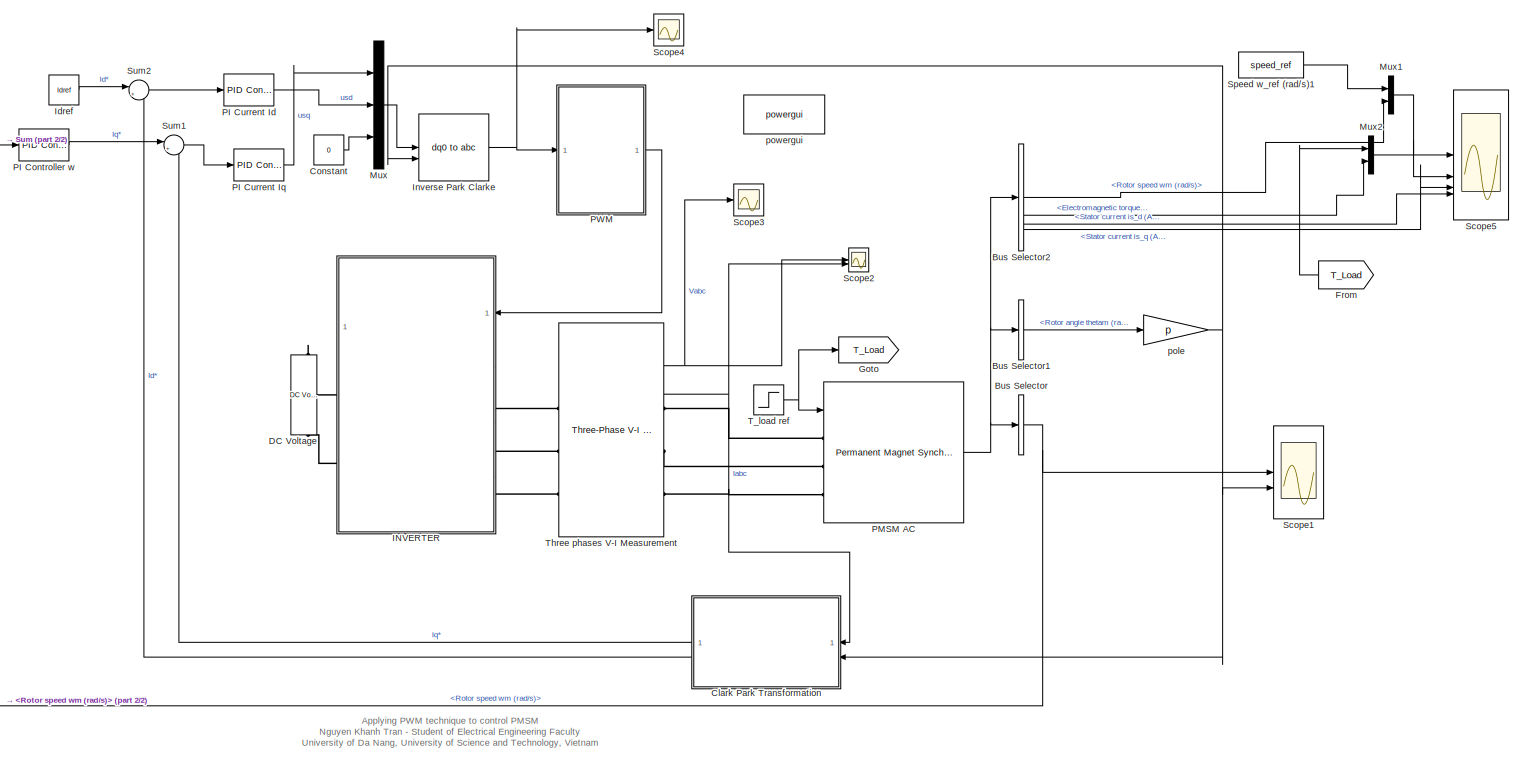
[diagram: root canvas - part 1/2, most of the canvas]
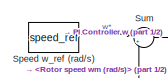
[diagram: root canvas - part 2/2, top left region]
MODEL slx_ce0d3dbd15e3
KIND model
CONFIG AbsTol = auto
CONFIG EnableMultiTasking = off
CONFIG FixedStep = auto
CONFIG MaxStep = 1e-4
CONFIG MinStep = auto
CONFIG RelTol = 1e-3
CONFIG SampleTimeConstraint = Unconstrained
CONFIG SolverName = VariableStepAuto
CONFIG StartTime = 0.0
CONFIG StopTime = 1
BLOCK [BusSelector] Bus Selector
  OutputSignals = Rotor speed wm (rad/s)
BLOCK [BusSelector] Bus Selector1
  OutputSignals = Rotor angle thetam (rad)
BLOCK [BusSelector] Bus Selector2
  OutputSignals = Rotor speed wm (rad/s),Electromagnetic torque Te (N*m),Stator current is_d (A),Stator current is_q (A)
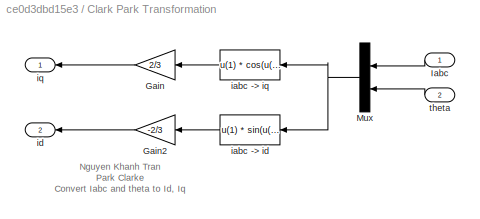
BLOCK [SubSystem] Clark Park Transformation
  NameLocation = top
BLOCK [Gain] Clark Park Transformation/Gain
  Gain = 2/3
  NameLocation = top
BLOCK [Gain] Clark Park Transformation/Gain2
  Gain = -2/3
  NameLocation = top
BLOCK [Inport] Clark Park Transformation/Iabc
  NameLocation = top
BLOCK [Mux] Clark Park Transformation/Mux
  DisplayOption = bar
  Inputs = 2
  NameLocation = top
BLOCK [Fcn] Clark Park Transformation/iabc -> id
  Expr = u(1) * sin(u(4)) + u(2) *sin(u(4) - 2*pi/3) + u(3)*sin(u(4)+2*pi/3)
BLOCK [Fcn] Clark Park Transformation/iabc -> iq
  Expr = u(1) * cos(u(4)) + u(2) *cos(u(4) - 2*pi/3) + u(3)*cos(u(4)+2*pi/3)
BLOCK [Outport] Clark Park Transformation/id
  NameLocation = top
  Port = 2
BLOCK [Outport] Clark Park Transformation/iq
  NameLocation = top
BLOCK [Inport] Clark Park Transformation/theta
  NameLocation = top
  Port = 2
BLOCK [Constant] Constant
  Value = 0
BLOCK [Reference] DC Voltage  REF=spsDCVoltageSourceLib/DC Voltage Source
  SourceBlock = spsDCVoltageSourceLib/DC Voltage Source
  SourceType = DC Voltage Source
BLOCK [From] From
  GotoTag = T_Load
  NameLocation = top
BLOCK [Goto] Goto
  GotoTag = T_Load
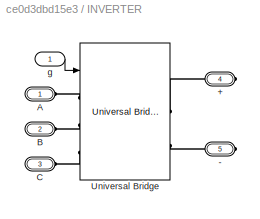
BLOCK [SubSystem] INVERTER
  NameLocation = top
BLOCK [PMIOPort] INVERTER/+
  Port = 4
  Side = Right
BLOCK [PMIOPort] INVERTER/-
  Port = 5
  Side = Right
BLOCK [PMIOPort] INVERTER/A
  Side = Left
BLOCK [PMIOPort] INVERTER/B
  Port = 2
  Side = Left
BLOCK [PMIOPort] INVERTER/C
  Port = 3
  Side = Left
BLOCK [Reference] INVERTER/Universal Bridge  REF=spsUniversalBridgeLib/Universal Bridge
  SourceBlock = spsUniversalBridgeLib/Universal Bridge
  SourceType = Universal Bridge
BLOCK [Inport] INVERTER/g
BLOCK [Constant] Idref
  Value = Idref
BLOCK [Reference] Inverse Park Clarke  REF=spsdq0toabcLib/dq0 to abc
  SourceBlock = spsdq0toabcLib/dq0 to abc
  SourceType = dq0 to abc Transformation
BLOCK [Mux] Mux
  DisplayOption = bar
  Inputs = 3
BLOCK [Mux] Mux1
  DisplayOption = bar
  Inputs = 2
BLOCK [Mux] Mux2
  DisplayOption = bar
  Inputs = 2
BLOCK [Reference] PI Controller w  REF=slpidlib/PID Controller
  SourceBlock = slpidlib/PID Controller
  SourceType = PID 1dof
BLOCK [Reference] PI Current Id  REF=slpidlib/PID Controller
  SourceBlock = slpidlib/PID Controller
  SourceType = PID 1dof
BLOCK [Reference] PI Current Iq  REF=slpidlib/PID Controller
  SourceBlock = slpidlib/PID Controller
  SourceType = PID 1dof
BLOCK [Reference] PMSM AC    REF=spsPermanentMagnetSynchronousMachineLib/Permanent Magnet
Synchronous Machine
  SourceBlock = spsPermanentMagnetSynchronousMachineLib/Permanent Magnet\nSynchronous Machine
  SourceType = Permanent Magnet Synchronous Machine
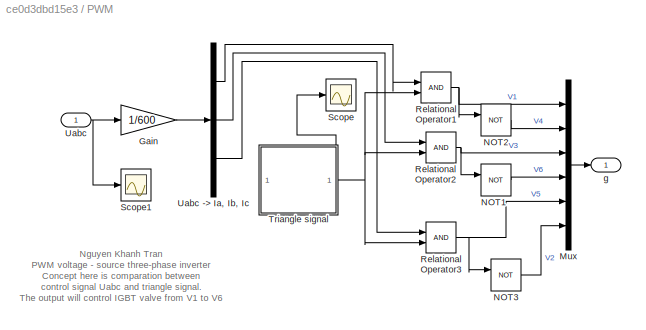
BLOCK [SubSystem] PWM 
BLOCK [Gain] PWM /Gain
  Gain = 1/600
BLOCK [Mux] PWM /Mux
  DisplayOption = bar
  Inputs = 6
BLOCK [Logic] PWM /NOT1
  AllPortsSameDT = off
  IconShape = distinctive
  Operator = NOT
  OutDataTypeStr = boolean
BLOCK [Logic] PWM /NOT2
  AllPortsSameDT = off
  IconShape = distinctive
  Operator = NOT
  OutDataTypeStr = boolean
BLOCK [Logic] PWM /NOT3
  AllPortsSameDT = off
  IconShape = distinctive
  Operator = NOT
  OutDataTypeStr = boolean
BLOCK [RelationalOperator] PWM /Relational Operator1
  InputSameDT = off
  OutDataTypeStr = boolean
  RndMeth = Simplest
BLOCK [RelationalOperator] PWM /Relational Operator2
  InputSameDT = off
  OutDataTypeStr = boolean
  RndMeth = Simplest
BLOCK [RelationalOperator] PWM /Relational Operator3
  InputSameDT = off
  OutDataTypeStr = boolean
  RndMeth = Simplest
BLOCK [Scope] PWM /Scope
  Floating = off
  NumInputPorts = 1
  ScopeSpecificationString = Simulink.scopes.TimeScopeBlockCfg('CurrentConfiguration', extmgr.ConfigurationSet(extmgr.Configuration('Core','General UI',true),extmgr.Configuration('Core','Source UI',true),extmgr.Configuration('Sources','WiredSimulink',true,'DataLoggingVariableName','ScopeData1'),extmgr.Configuration('Visuals','Time Domain',true,'SerializedDisplays',{struct('MinYLimReal','-1.25','MaxYLimReal','1.16991','YLabelR...<+1404ch>
BLOCK [Scope] PWM /Scope1
  Floating = off
  NumInputPorts = 1
  ScopeSpecificationString = Simulink.scopes.TimeScopeBlockCfg('CurrentConfiguration', extmgr.ConfigurationSet(extmgr.Configuration('Core','General UI',true),extmgr.Configuration('Core','Source UI',true),extmgr.Configuration('Sources','WiredSimulink',true,'DataLoggingVariableName','ScopeData3'),extmgr.Configuration('Visuals','Time Domain',true,'SerializedDisplays',{struct('MinYLimReal','-571.76854','MaxYLimReal','566.36574','...<+1443ch>
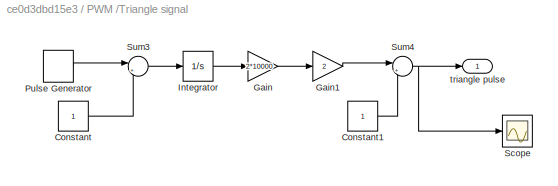
BLOCK [SubSystem] PWM /Triangle signal 
BLOCK [Constant] PWM /Triangle signal /Constant
BLOCK [Constant] PWM /Triangle signal /Constant1
BLOCK [Gain] PWM /Triangle signal /Gain
  Gain = 2*10000
BLOCK [Gain] PWM /Triangle signal /Gain1
  Gain = 2
BLOCK [Integrator] PWM /Triangle signal /Integrator
BLOCK [DiscretePulseGenerator] PWM /Triangle signal /Pulse Generator
  Amplitude = 2
  Period = 1/10000
  PulseType = Time based
  PulseWidth = 50
BLOCK [Scope] PWM /Triangle signal /Scope
  Floating = off
  NumInputPorts = 1
  ScopeSpecificationString = Simulink.scopes.TimeScopeBlockCfg('CurrentConfiguration', extmgr.ConfigurationSet(extmgr.Configuration('Core','General UI',true),extmgr.Configuration('Core','Source UI',true),extmgr.Configuration('Sources','WiredSimulink',true,'DataLoggingVariableName','ScopeData2'),extmgr.Configuration('Visuals','Time Domain',true,'SerializedDisplays',{struct('MinYLimReal','-1.25','MaxYLimReal','1.25','YLabelReal...<+1420ch>
BLOCK [Sum] PWM /Triangle signal /Sum3
  Inputs = |+-
BLOCK [Sum] PWM /Triangle signal /Sum4
  Inputs = |+-
BLOCK [Outport] PWM /Triangle signal /triangle pulse
BLOCK [Inport] PWM /Uabc
BLOCK [Demux] PWM /Uabc -> Ia, Ib, Ic 
  Outputs = 3
BLOCK [Outport] PWM /g
BLOCK [Scope] Scope1
  Floating = off
  NumInputPorts = 2
  ScopeSpecificationString = Simulink.scopes.TimeScopeBlockCfg('CurrentConfiguration', extmgr.ConfigurationSet(extmgr.Configuration('Core','General UI',true,'FigureColor',[1 1 1]),extmgr.Configuration('Core','Source UI',true),extmgr.Configuration('Sources','WiredSimulink',true,'DataLoggingVariableName','ScopeData1'),extmgr.Configuration('Visuals','Time Domain',true,'SerializedDisplays',{struct('MinYLimReal','-66.52021','MaxYL...<+2454ch>
BLOCK [Scope] Scope2
  Floating = off
  NumInputPorts = 2
  ScopeSpecificationString = Simulink.scopes.TimeScopeBlockCfg('CurrentConfiguration', extmgr.ConfigurationSet(extmgr.Configuration('Core','General UI',true,'FigureColor',[1 1 1]),extmgr.Configuration('Core','Source UI',true),extmgr.Configuration('Sources','WiredSimulink',true,'DataLoggingVariableName','ScopeData2'),extmgr.Configuration('Visuals','Time Domain',true,'SerializedDisplays',{struct('MinYLimReal','-750.0092','MaxYL...<+2948ch>
BLOCK [Scope] Scope3
  Floating = off
  NumInputPorts = 1
  ScopeSpecificationString = Simulink.scopes.TimeScopeBlockCfg('CurrentConfiguration', extmgr.ConfigurationSet(extmgr.Configuration('Core','General UI',true,'FigureColor',[1 1 1]),extmgr.Configuration('Core','Source UI',true),extmgr.Configuration('Sources','WiredSimulink',true,'DataLoggingVariableName','ScopeData1'),extmgr.Configuration('Visuals','Time Domain',true,'SerializedDisplays',{struct('MinYLimReal','-750.0092','MaxYL...<+1627ch>
BLOCK [Scope] Scope4
  Floating = off
  NumInputPorts = 1
  ScopeSpecificationString = Simulink.scopes.TimeScopeBlockCfg('CurrentConfiguration', extmgr.ConfigurationSet(extmgr.Configuration('Core','General UI',true),extmgr.Configuration('Core','Source UI',true),extmgr.Configuration('Sources','WiredSimulink',true,'DataLoggingVariableName','ScopeData2'),extmgr.Configuration('Visuals','Time Domain',true,'SerializedDisplays',{struct('MinYLimReal','-657.69778','MaxYLimReal','673.66765','...<+1542ch>
BLOCK [Scope] Scope5
  Floating = off
  NumInputPorts = 4
  ScopeSpecificationString = Simulink.scopes.TimeScopeBlockCfg('CurrentConfiguration', extmgr.ConfigurationSet(extmgr.Configuration('Core','General UI',true,'FigureColor',[1 1 1]),extmgr.Configuration('Core','Source UI',true),extmgr.Configuration('Sources','WiredSimulink',true,'DataLoggingVariableName','ScopeData1'),extmgr.Configuration('Visuals','Time Domain',true,'SerializedDisplays',{struct('MinYLimReal','-66.52021','MaxYL...<+4812ch>
BLOCK [Constant] Speed w_ref (rad//s)
  Value = speed_ref
BLOCK [Constant] Speed w_ref (rad//s)1
  Value = speed_ref
BLOCK [Sum] Sum
  Inputs = |+-
BLOCK [Sum] Sum1
  Inputs = |+-
BLOCK [Sum] Sum2
  Inputs = |+-
BLOCK [Step] T_load ref
  SampleTime = 0
  Time = 0.3
BLOCK [Reference] Three phases V-I Measurement  REF=spsThreePhaseVIMeasurementLib/Three-Phase
V-I Measurement
  SourceBlock = spsThreePhaseVIMeasurementLib/Three-Phase\nV-I Measurement
  SourceType = Three-Phase VI Measurement
BLOCK [Gain] pole
  Gain = p
BLOCK [Reference] powergui  REF=spspowerguiLib/powergui
  Priority = 1
  SourceBlock = spspowerguiLib/powergui
  SourceType = PSB option menu block
ANNOTATION (root): Applying PWM technique to control PMSM Nguyen Khanh Tran - Student of Electrical Engineering Faculty University of Da Nang, University of Science and Technology, Vietnam
ANNOTATION Clark Park Transformation: Nguyen Khanh Tran Park Clarke Convert Iabc and theta to Id, Iq
ANNOTATION PWM : Nguyen Khanh Tran PWM voltage - source three-phase inverter Concept here is comparation between control signal Uabc and triangle signal. The output will control IGBT valve from V1 to V6
LINE Bus Selector1:1 -> pole:1
LINE Bus Selector2:1 -> Mux1:2
LINE Bus Selector2:2 -> Mux2:2
LINE Bus Selector2:3 -> Scope5:4
LINE Bus Selector2:4 -> Scope5:3
NET Bus Selector:1 -> Scope1:1, Sum:2
LINE Clark Park Transformation/Gain2:1 -> Clark Park Transformation/id:1
LINE Clark Park Transformation/Gain:1 -> Clark Park Transformation/iq:1
LINE Clark Park Transformation/Iabc:1 -> Clark Park Transformation/Mux:1
NET Clark Park Transformation/Mux:1 -> Clark Park Transformation/iabc -> id:1, Clark Park Transformation/iabc -> iq:1
LINE Clark Park Transformation/iabc -> id:1 -> Clark Park Transformation/Gain2:1
LINE Clark Park Transformation/iabc -> iq:1 -> Clark Park Transformation/Gain:1
LINE Clark Park Transformation/theta:1 -> Clark Park Transformation/Mux:2
LINE Clark Park Transformation:1 -> Sum1:2
LINE Clark Park Transformation:2 -> Sum2:2
LINE Constant:1 -> Mux:3
LINE From:1 -> Mux2:1
LINE INVERTER/g:1 -> INVERTER/Universal Bridge:1
LINE Idref:1 -> Sum2:1
NET Inverse Park Clarke:1 -> PWM :1, Scope4:1
LINE Mux1:1 -> Scope5:1
LINE Mux2:1 -> Scope5:2
LINE Mux:1 -> Inverse Park Clarke:1
LINE PI Controller w:1 -> Sum1:1
LINE PI Current Id:1 -> Mux:2
LINE PI Current Iq:1 -> Mux:1
NET PMSM AC  :1 -> Bus Selector1:1, Bus Selector2:1, Bus Selector:1
LINE PWM /Gain:1 -> PWM /Uabc -> Ia, Ib, Ic :1
LINE PWM /Mux:1 -> PWM /g:1
LINE PWM /NOT1:1 -> PWM /Mux:4
LINE PWM /NOT2:1 -> PWM /Mux:2
LINE PWM /NOT3:1 -> PWM /Mux:6
NET PWM /Relational Operator1:1 -> PWM /Mux:1, PWM /NOT2:1
NET PWM /Relational Operator2:1 -> PWM /Mux:3, PWM /NOT1:1
NET PWM /Relational Operator3:1 -> PWM /Mux:5, PWM /NOT3:1
LINE PWM /Triangle signal /Constant1:1 -> PWM /Triangle signal /Sum4:2
LINE PWM /Triangle signal /Constant:1 -> PWM /Triangle signal /Sum3:2
LINE PWM /Triangle signal /Gain1:1 -> PWM /Triangle signal /Sum4:1
LINE PWM /Triangle signal /Gain:1 -> PWM /Triangle signal /Gain1:1
LINE PWM /Triangle signal /Integrator:1 -> PWM /Triangle signal /Gain:1
LINE PWM /Triangle signal /Pulse Generator:1 -> PWM /Triangle signal /Sum3:1
LINE PWM /Triangle signal /Sum3:1 -> PWM /Triangle signal /Integrator:1
NET PWM /Triangle signal /Sum4:1 -> PWM /Triangle signal /Scope:1, PWM /Triangle signal /triangle pulse:1
NET PWM /Triangle signal :1 -> PWM /Relational Operator1:2, PWM /Relational Operator2:2, PWM /Relational Operator3:2, PWM /Scope:1
LINE PWM /Uabc -> Ia, Ib, Ic :1 -> PWM /Relational Operator1:1
LINE PWM /Uabc -> Ia, Ib, Ic :2 -> PWM /Relational Operator2:1
LINE PWM /Uabc -> Ia, Ib, Ic :3 -> PWM /Relational Operator3:1
NET PWM /Uabc:1 -> PWM /Gain:1, PWM /Scope1:1
LINE PWM :1 -> INVERTER:1
LINE Speed w_ref (rad//s)1:1 -> Mux1:1
LINE Speed w_ref (rad//s):1 -> Sum:1
LINE Sum1:1 -> PI Current Iq:1
LINE Sum2:1 -> PI Current Id:1
LINE Sum:1 -> PI Controller w:1
NET T_load ref:1 -> Goto:1, PMSM AC  :1
NET Three phases V-I Measurement:1 -> Scope2:1, Scope3:1
NET Three phases V-I Measurement:2 -> Clark Park Transformation:1, Scope2:2
NET pole:1 -> Clark Park Transformation:2, Inverse Park Clarke:2, Scope1:2
PLINE DC Voltage:LConn1 -- INVERTER:RConn2
PLINE DC Voltage:RConn1 -- INVERTER:RConn1
PLINE INVERTER/+:RConn1 -- INVERTER/Universal Bridge:RConn1
PLINE INVERTER/-:RConn1 -- INVERTER/Universal Bridge:RConn2
PLINE INVERTER/A:RConn1 -- INVERTER/Universal Bridge:LConn1
PLINE INVERTER/B:RConn1 -- INVERTER/Universal Bridge:LConn2
PLINE INVERTER/C:RConn1 -- INVERTER/Universal Bridge:LConn3
PLINE INVERTER:LConn1 -- Three phases V-I Measurement:LConn1
PLINE INVERTER:LConn2 -- Three phases V-I Measurement:LConn2
PLINE INVERTER:LConn3 -- Three phases V-I Measurement:LConn3
PLINE PMSM AC  :LConn1 -- Three phases V-I Measurement:RConn1
PLINE PMSM AC  :LConn2 -- Three phases V-I Measurement:RConn2
PLINE PMSM AC  :LConn3 -- Three phases V-I Measurement:RConn3
note: NET lines group one-source signal fan-out (src -> all destinations, sorted); 1:1 wires keep LINE
